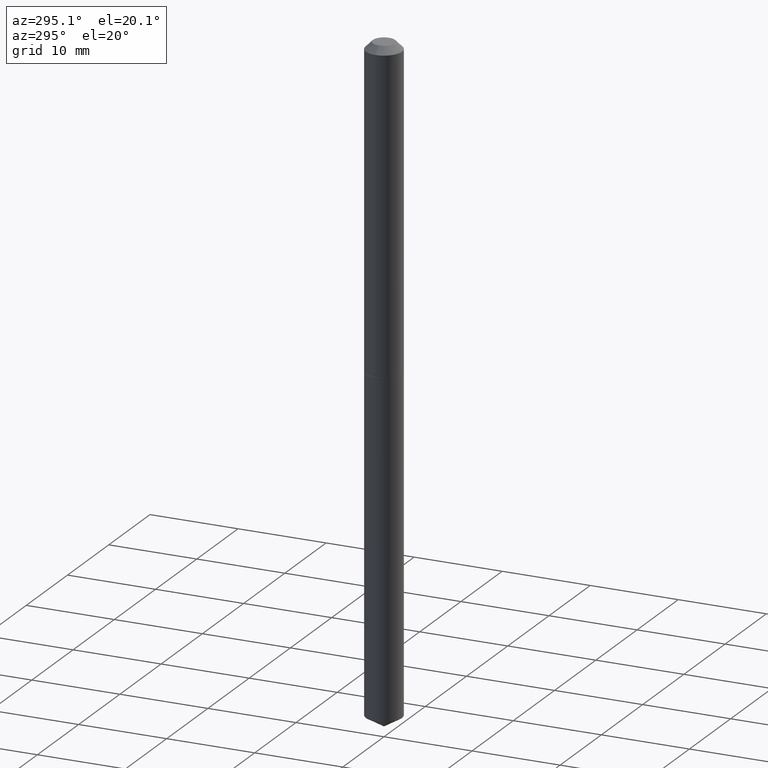
[diagram: clean part render]
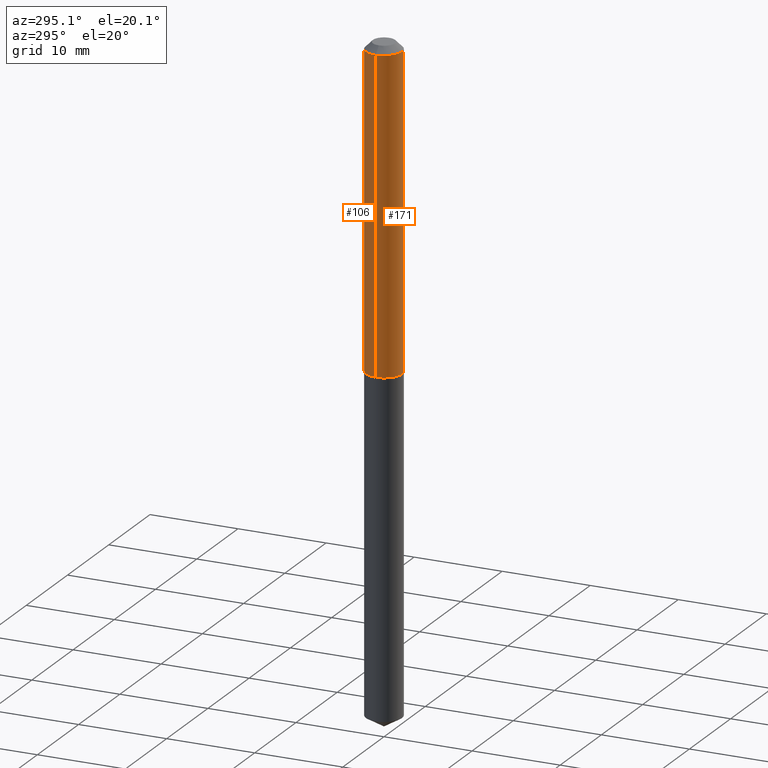
[diagram: same view with one multi-face feature highlighted, each face labeled with its STEP entity id]
A machine part, auxiliary view. The highlighted faces form ONE feature: a constant-radius fillet chain: 2 tangent blend faces with common blend radius 2.0498 mm. The faces share edges in the B-rep.
Their STEP definitions:
[1] entity #171 (Cylinder):
#12 = EDGE_LOOP ( 'NONE', ( #367, #380, #70, #129 ) ) ;
#27 = CIRCLE ( 'NONE', #158, 0.08070000000000016049 ) ;
#35 = DIRECTION ( 'NONE',  ( -2.445468806185136877E-29, 3.491481338843145188E-15, 1.000000000000000000 ) ) ;
#36 = VERTEX_POINT ( 'NONE', #299 ) ;
#43 = VERTEX_POINT ( 'NONE', #218 ) ;
#54 = CARTESIAN_POINT ( 'NONE',  ( 7.642090019328601786E-31, -1.091087918388490144E-16, -0.03125000000000020123 ) ) ;
#63 = AXIS2_PLACEMENT_3D ( 'NONE', #54, #222, #347 ) ;
#70 = ORIENTED_EDGE ( 'NONE', *, *, #340, .T. ) ;
#76 = CYLINDRICAL_SURFACE ( 'NONE', #227, 0.08070000000000007723 ) ;
#82 = CARTESIAN_POINT ( 'NONE',  ( 3.474522079827841687E-29, -4.960696686228340179E-15, -1.420799999999999841 ) ) ;
#109 = DIRECTION ( 'NONE',  ( -2.445468806185136877E-29, 3.491481338843145188E-15, 1.000000000000000000 ) ) ;
#120 = VECTOR ( 'NONE', #35, 39.37007874015748143 ) ;
#129 = ORIENTED_EDGE ( 'NONE', *, *, #266, .F. ) ;
#135 = FACE_OUTER_BOUND ( 'NONE', #12, .T. ) ;
#148 = VERTEX_POINT ( 'NONE', #165 ) ;
#158 = AXIS2_PLACEMENT_3D ( 'NONE', #82, #181, #161 ) ;
#161 = DIRECTION ( 'NONE',  ( 1.000000000000000000, -6.982962677686269077E-15, 0.000000000000000000 ) ) ;
#165 = CARTESIAN_POINT ( 'NONE',  ( -0.08069999999999999396, -1.961494751275192255E-15, -0.03125000000000020123 ) ) ;
#170 = CARTESIAN_POINT ( 'NONE',  ( -0.08070000000000007723, 5.734079877584013987E-16, -3.969580617835712947E-30 ) ) ;
#171 = ADVANCED_FACE ( 'NONE', ( #135 ), #76, .T. ) ;
#181 = DIRECTION ( 'NONE',  ( -2.445468806185136597E-29, 3.491481338843145583E-15, 1.000000000000000000 ) ) ;
#182 = DIRECTION ( 'NONE',  ( -2.445468806185136597E-29, 3.491481338843145583E-15, 1.000000000000000000 ) ) ;
#183 = DIRECTION ( 'NONE',  ( 1.000000000000000000, -6.982962677686266711E-15, 4.876176775795935793E-29 ) ) ;
#187 = VECTOR ( 'NONE', #109, 39.37007874015748143 ) ;
#197 = LINE ( 'NONE', #170, #120 ) ;
#212 = CARTESIAN_POINT ( 'NONE',  ( -0.08070000000000016049, -4.387288698469938583E-15, -1.420799999999999841 ) ) ;
#218 = CARTESIAN_POINT ( 'NONE',  ( 0.08070000000000016049, -5.524221774317623619E-15, -1.420799999999999841 ) ) ;
#222 = DIRECTION ( 'NONE',  ( -2.445468806185136597E-29, 3.491481338843145583E-15, 1.000000000000000000 ) ) ;
#227 = AXIS2_PLACEMENT_3D ( 'NONE', #257, #182, #183 ) ;
#246 = LINE ( 'NONE', #383, #187 ) ;
#250 = EDGE_CURVE ( 'NONE', #303, #148, #197, .T. ) ;
#257 = CARTESIAN_POINT ( 'NONE',  ( 0.000000000000000000, 0.000000000000000000, 0.000000000000000000 ) ) ;
#266 = EDGE_CURVE ( 'NONE', #148, #36, #304, .T. ) ;
#299 = CARTESIAN_POINT ( 'NONE',  ( 0.08069999999999999396, -6.726338799281306672E-16, -0.03125000000000020123 ) ) ;
#303 = VERTEX_POINT ( 'NONE', #212 ) ;
#304 = CIRCLE ( 'NONE', #63, 0.08069999999999999396 ) ;
#324 = EDGE_CURVE ( 'NONE', #303, #43, #27, .T. ) ;
#340 = EDGE_CURVE ( 'NONE', #43, #36, #246, .T. ) ;
#347 = DIRECTION ( 'NONE',  ( 1.000000000000000000, -6.982962677686266711E-15, 0.000000000000000000 ) ) ;
#367 = ORIENTED_EDGE ( 'NONE', *, *, #250, .F. ) ;
#380 = ORIENTED_EDGE ( 'NONE', *, *, #324, .T. ) ;
#383 = CARTESIAN_POINT ( 'NONE',  ( 0.08070000000000007723, -5.635250880892822568E-16, 3.935074658067323862E-30 ) ) ;
[2] entity #106 (Cylinder):
#16 = EDGE_CURVE ( 'NONE', #43, #303, #59, .T. ) ;
#21 = DIRECTION ( 'NONE',  ( 1.000000000000000000, -6.982962677686266711E-15, 4.876176775795935793E-29 ) ) ;
#25 = CARTESIAN_POINT ( 'NONE',  ( 7.642090019328601786E-31, -1.091087918388490144E-16, -0.03125000000000020123 ) ) ;
#35 = DIRECTION ( 'NONE',  ( -2.445468806185136877E-29, 3.491481338843145188E-15, 1.000000000000000000 ) ) ;
#36 = VERTEX_POINT ( 'NONE', #299 ) ;
#41 = ORIENTED_EDGE ( 'NONE', *, *, #250, .T. ) ;
#43 = VERTEX_POINT ( 'NONE', #218 ) ;
#44 = AXIS2_PLACEMENT_3D ( 'NONE', #25, #210, #373 ) ;
#59 = CIRCLE ( 'NONE', #334, 0.08070000000000016049 ) ;
#87 = AXIS2_PLACEMENT_3D ( 'NONE', #284, #105, #21 ) ;
#105 = DIRECTION ( 'NONE',  ( -2.445468806185136597E-29, 3.491481338843145583E-15, 1.000000000000000000 ) ) ;
#106 = ADVANCED_FACE ( 'NONE', ( #310 ), #130, .T. ) ;
#109 = DIRECTION ( 'NONE',  ( -2.445468806185136877E-29, 3.491481338843145188E-15, 1.000000000000000000 ) ) ;
#120 = VECTOR ( 'NONE', #35, 39.37007874015748143 ) ;
#130 = CYLINDRICAL_SURFACE ( 'NONE', #87, 0.08070000000000007723 ) ;
#146 = CARTESIAN_POINT ( 'NONE',  ( 3.474522079827841687E-29, -4.960696686228340179E-15, -1.420799999999999841 ) ) ;
#148 = VERTEX_POINT ( 'NONE', #165 ) ;
#154 = ORIENTED_EDGE ( 'NONE', *, *, #204, .F. ) ;
#165 = CARTESIAN_POINT ( 'NONE',  ( -0.08069999999999999396, -1.961494751275192255E-15, -0.03125000000000020123 ) ) ;
#170 = CARTESIAN_POINT ( 'NONE',  ( -0.08070000000000007723, 5.734079877584013987E-16, -3.969580617835712947E-30 ) ) ;
#187 = VECTOR ( 'NONE', #109, 39.37007874015748143 ) ;
#197 = LINE ( 'NONE', #170, #120 ) ;
#204 = EDGE_CURVE ( 'NONE', #36, #148, #261, .T. ) ;
#210 = DIRECTION ( 'NONE',  ( -2.445468806185136597E-29, 3.491481338843145583E-15, 1.000000000000000000 ) ) ;
#212 = CARTESIAN_POINT ( 'NONE',  ( -0.08070000000000016049, -4.387288698469938583E-15, -1.420799999999999841 ) ) ;
#218 = CARTESIAN_POINT ( 'NONE',  ( 0.08070000000000016049, -5.524221774317623619E-15, -1.420799999999999841 ) ) ;
#246 = LINE ( 'NONE', #383, #187 ) ;
#250 = EDGE_CURVE ( 'NONE', #303, #148, #197, .T. ) ;
#261 = CIRCLE ( 'NONE', #44, 0.08069999999999999396 ) ;
#283 = EDGE_LOOP ( 'NONE', ( #295, #41, #154, #349 ) ) ;
#284 = CARTESIAN_POINT ( 'NONE',  ( 0.000000000000000000, 0.000000000000000000, 0.000000000000000000 ) ) ;
#295 = ORIENTED_EDGE ( 'NONE', *, *, #16, .T. ) ;
#298 = DIRECTION ( 'NONE',  ( 1.000000000000000000, -6.982962677686269077E-15, 0.000000000000000000 ) ) ;
#299 = CARTESIAN_POINT ( 'NONE',  ( 0.08069999999999999396, -6.726338799281306672E-16, -0.03125000000000020123 ) ) ;
#301 = DIRECTION ( 'NONE',  ( -2.445468806185136597E-29, 3.491481338843145583E-15, 1.000000000000000000 ) ) ;
#303 = VERTEX_POINT ( 'NONE', #212 ) ;
#310 = FACE_OUTER_BOUND ( 'NONE', #283, .T. ) ;
#334 = AXIS2_PLACEMENT_3D ( 'NONE', #146, #301, #298 ) ;
#340 = EDGE_CURVE ( 'NONE', #43, #36, #246, .T. ) ;
#349 = ORIENTED_EDGE ( 'NONE', *, *, #340, .F. ) ;
#373 = DIRECTION ( 'NONE',  ( 1.000000000000000000, -6.982962677686266711E-15, 0.000000000000000000 ) ) ;
#383 = CARTESIAN_POINT ( 'NONE',  ( 0.08070000000000007723, -5.635250880892822568E-16, 3.935074658067323862E-30 ) ) ;